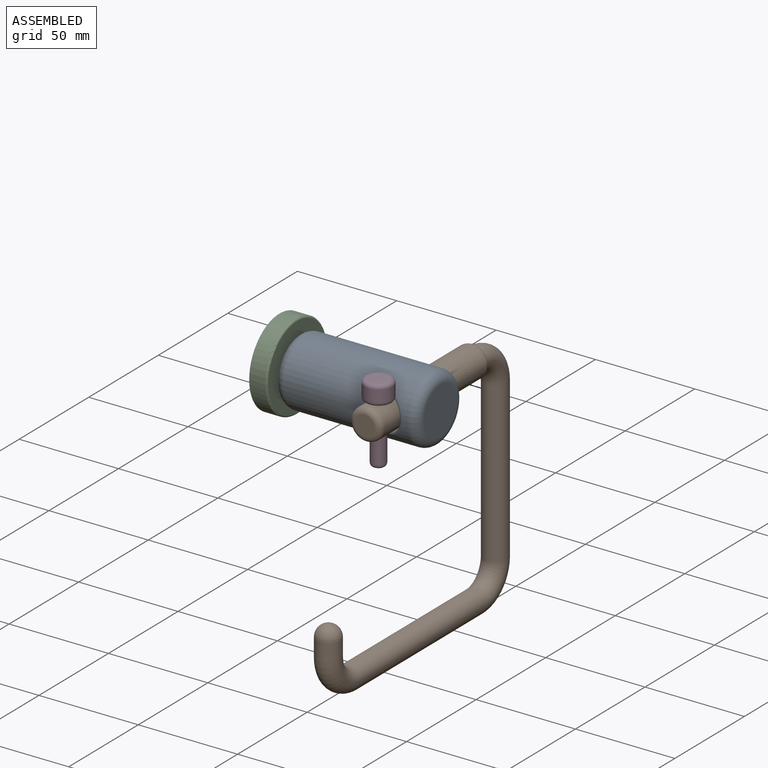
[diagram: assembled view]
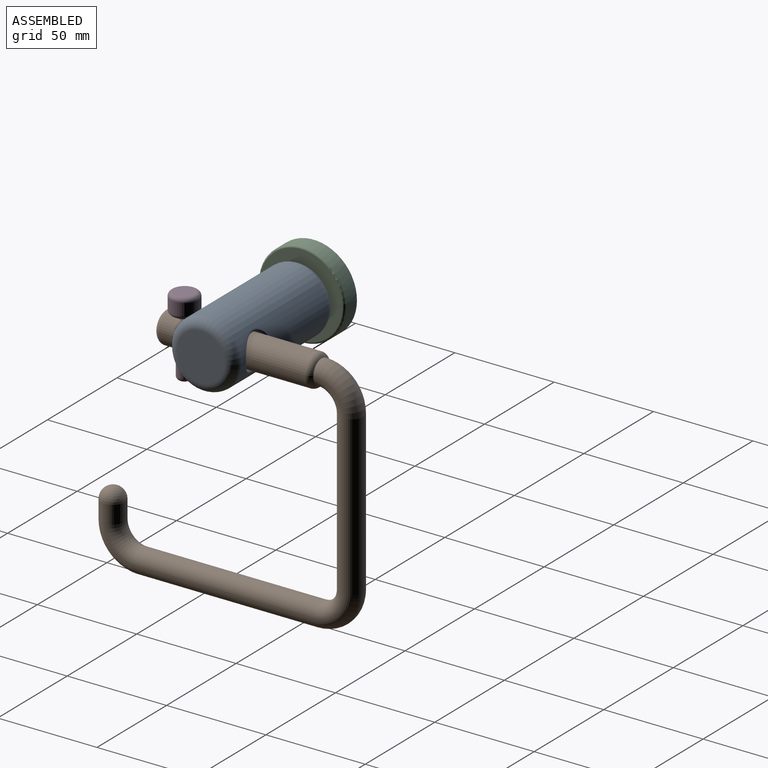
[diagram: assembled view, second angle]
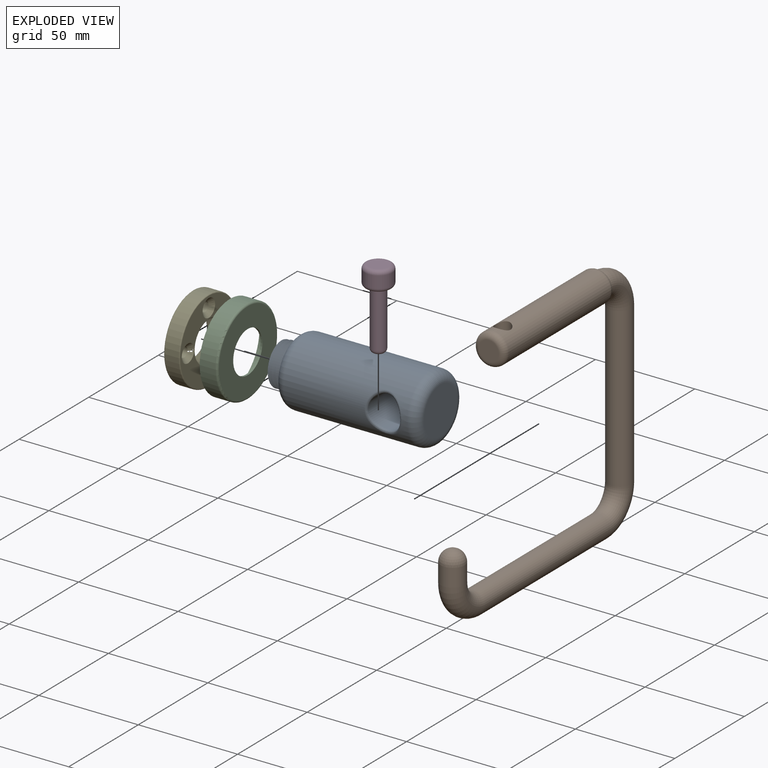
[diagram: exploded view]
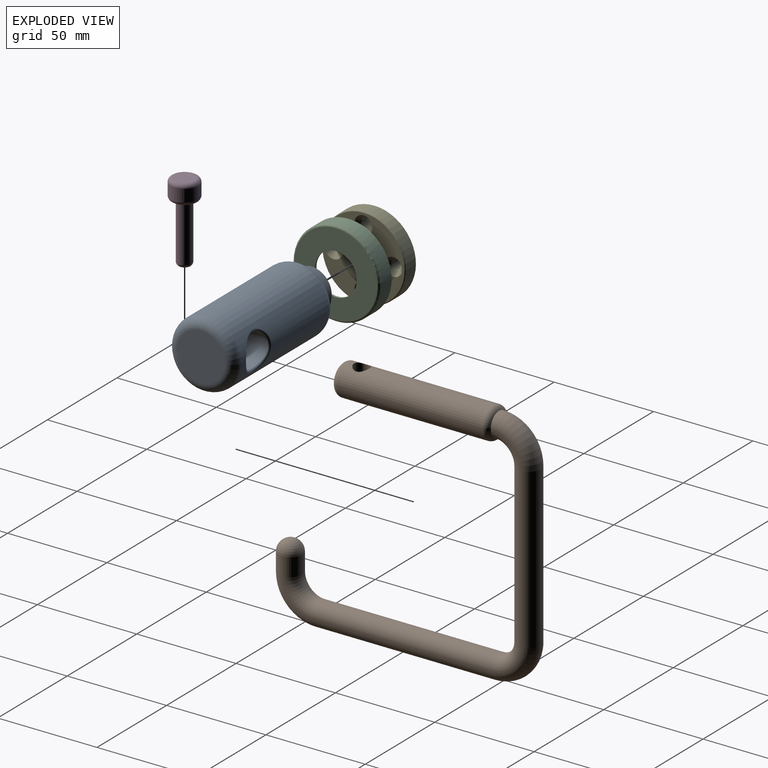
[diagram: exploded view, second angle]
ASSEMBLY  parts=5 mates=4
PART A: 15 faces, bbox 38.2x38.2x82.6 mm
  f0: cylinder r=17mm len=62mm, axis (0,0,-1), area 6023.9mm2, adj f11,f12,f13,f14
  f1: plane 24x24mm, normal (0,0,1), area 72.3mm2, adj f3,f5,f14
  f2: plane 24x24mm, normal (0,0,-1), area 452.4mm2, adj f13
  f3: cylinder r=11mm len=7.71mm, axis (0,0,-1), area 1.1mm2, adj f1,f4,f7
  f4: plane 2.25x2.17mm, normal (0,1,0), area 2.6mm2, adj f3,f5,f6,f7,f8
  f5: cylinder r=11mm len=22mm, axis (0,0,-1), area 53mm2, adj f1,f4,f7
  f6: bspline ~24.4x21.13mm, area 550.2mm2, adj f4,f7,f8,f9
  f7: bspline ~25.4x22mm, area 33.9mm2, adj f3,f4,f5,f6
  f8: bspline ~24.4x21.13mm, area 486.5mm2, adj f4,f6,f9
  f9: plane 20.89x20.87mm, normal (0,0,1), area 296.5mm2, adj f6,f8
  f10: cylinder r=8.25mm len=32mm, axis (1,0,0), area 1510mm2, adj f11,f12
  f11: bspline ~19.66x18.52mm, area 105.2mm2, adj f0,f10
  f12: bspline ~19.66x18.52mm, area 105.2mm2, adj f0,f10
  f13: torus R=12mm, axis (0,0,1), area 749.3mm2, adj f0,f2
  f14: torus R=12mm, axis (0,0,1), area 749.3mm2, adj f0,f1
PART B: 12 faces, bbox 135.5x17.3x126.4 mm
  f0: plane 10x10mm, normal (-1,0,0), area 78.5mm2, adj f10
  f1: cylinder r=6mm len=12mm, axis (0,0,-1), area 339.3mm2, adj f2,f8
  f2: torus R=15mm, axis (0,-1,0), area 888.3mm2, adj f1,f3
  f3: cylinder r=6mm len=90mm, axis (1,0,0), area 3392.9mm2, adj f2,f4
  f4: torus R=15mm, axis (0,-1,0), area 888.3mm2, adj f3,f5
  f5: cylinder r=6mm len=80mm, axis (0,0,1), area 3015.9mm2, adj f4,f6
  f6: torus R=15mm, axis (0,-1,0), area 888.3mm2, adj f5,f9
  f7: cylinder r=8mm len=73.17mm, axis (-1,0,0), area 3574mm2, adj f9,f10,f11
  f8: sphere r=6mm, area 226.2mm2, adj f1
  f9: torus R=5mm, axis (1,0,0), area 169.3mm2, adj f6,f7
  f10: torus R=5mm, axis (1,0,0), area 204.6mm2, adj f0,f7
  f11: cylinder r=4mm len=16mm, axis (0,0,1), area 375.7mm2, adj f7
PART C: 7 faces, bbox 47.1x47.1x9 mm
  f0: cylinder r=21.25mm len=42.5mm, axis (0,0,-1), area 1068.1mm2, adj f2,f3
  f1: cylinder r=21.75mm len=43.5mm, axis (0,0,-1), area 1093.3mm2, adj f2,f6
  f2: plane 43.5x43.5mm, normal (0,0,1), area 67.5mm2, adj f0,f1
  f3: plane 42.5x42.5mm, normal (0,0,1), area 1072.3mm2, adj f0,f5
  f4: plane 41.5x41.5mm, normal (0,0,-1), area 1006.3mm2, adj f5,f6
  f5: cylinder r=10.5mm len=21mm, axis (0,0,1), area 66mm2, adj f3,f4
  f6: torus R=20.75mm, axis (0,0,-1), area 211.1mm2, adj f1,f4
PART D: 8 faces, bbox 15.2x15.2x40 mm
  f0: cylinder r=3.65mm len=28mm, axis (0,0,-1), area 642.1mm2, adj f4,f7
  f1: plane 3.3x3.3mm, normal (0,0,1), area 8.6mm2, adj f7
  f2: cylinder r=7mm len=14mm, axis (0,0,1), area 263.9mm2, adj f5,f6
  f3: plane 10x10mm, normal (0,0,-1), area 78.5mm2, adj f6
  f4: plane 10x10mm, normal (0,0,1), area 36.7mm2, adj f0,f5
  f5: torus R=5mm, axis (0,0,-1), area 123.8mm2, adj f2,f4
  f6: torus R=5mm, axis (0,0,-1), area 123.8mm2, adj f2,f3
  f7: torus R=1.65mm, axis (0,0,1), area 57.7mm2, adj f0,f1
PART E: 22 faces, bbox 46x46x10.7 mm
  f0: cylinder r=9mm len=9.75mm, axis (0,0,1), area 3.1mm2, adj f16,f17,f21
  f1: cylinder r=21mm len=42mm, axis (0,0,-1), area 923.6mm2, adj f18,f19
  f2: plane 41x41mm, normal (0,0,1), area 927.6mm2, adj f4,f5,f6,f7,f19,f20
  f3: plane 41.54x41.54mm, normal (0,0,-1), area 722.1mm2, adj f8,f9,f10,f11,f12,f13,f14,f15
  f4: cylinder r=2.5mm len=6mm, axis (0,0,-1), area 94.2mm2, adj f2,f9
  f5: cylinder r=2.5mm len=6mm, axis (0,0,-1), area 94.2mm2, adj f2,f8
  f6: cylinder r=2.5mm len=6mm, axis (0,0,-1), area 94.2mm2, adj f2,f10
  f7: cylinder r=2.5mm len=6mm, axis (0,0,-1), area 94.2mm2, adj f2,f11
  f8: cone r=2.5mm half-angle=45deg, axis (0,0,-1), area 62.2mm2, adj f3,f5
  f9: cone r=2.5mm half-angle=45deg, axis (0,0,-1), area 62.2mm2, adj f3,f4,f13,f14
  f10: cone r=2.5mm half-angle=45deg, axis (0,0,-1), area 62.2mm2, adj f3,f6,f13
  f11: cone r=2.5mm half-angle=45deg, axis (0,0,-1), area 60.9mm2, adj f3,f7,f12,f13,f14
  f12: cone r=2.5mm half-angle=45deg, axis (0,0,-1), area 0mm2, adj f3,f11,f15
  f13: bspline ~25.78x22.33mm, area 481.3mm2, adj f3,f9,f10,f11,f14,f15,f16,f17
  f14: bspline ~25.78x22.33mm, area 429mm2, adj f3,f9,f11,f13,f16
  f15: bspline ~11.17x4.42mm, area 0.3mm2, adj f3,f12,f13
  f16: plane 2.17x1.62mm, normal (0,-1,0), area 1.9mm2, adj f0,f13,f14,f17,f21
  f17: bspline ~22.58x19.56mm, area 34.7mm2, adj f0,f13,f16,f21
  f18: torus R=20.5mm, axis (0,0,1), area 102.7mm2, adj f1,f3
  f19: torus R=20.5mm, axis (0,0,1), area 102.7mm2, adj f1,f2
  f20: cone r=9mm half-angle=45deg, axis (0,0,1), area 444.3mm2, adj f2
  f21: cone r=9mm half-angle=45deg, axis (0,0,1), area -382.5mm2, adj f0,f16,f17
PLACE A rot(axis=(-0.58,-0.58,0.58),120deg) t=(-27.26,-86.71,14.18)mm
PLACE B rot(axis=(0,0,1),90deg) t=(-44.26,-72.92,14.18)mm
PLACE C rot(axis=(-0.58,-0.58,0.58),120deg) t=(-100.26,-86.71,14.88)mm
PLACE D rot(axis=(1,0,0),180deg) t=(-44.26,-106.92,22.08)mm
PLACE E rot(axis=(0.58,-0.58,-0.58),120deg) t=(-100.26,-86.59,14.66)mm
MATE fastened E.f3 <-> C.f1  axis (1,0,0) through (-100.26,-86.71,14.88)mm
MATE fastened D.f0 <-> B.f11  axis (0,0,-1) through (-44.26,-106.92,-7.92)mm
MATE fastened A.f9 <-> C.f1  axis (-1,0,0) through (-107.26,-86.71,14.88)mm
MATE fastened B.f7 <-> A.f10  axis (0,-1,0) through (-44.26,-116.92,14.18)mm
